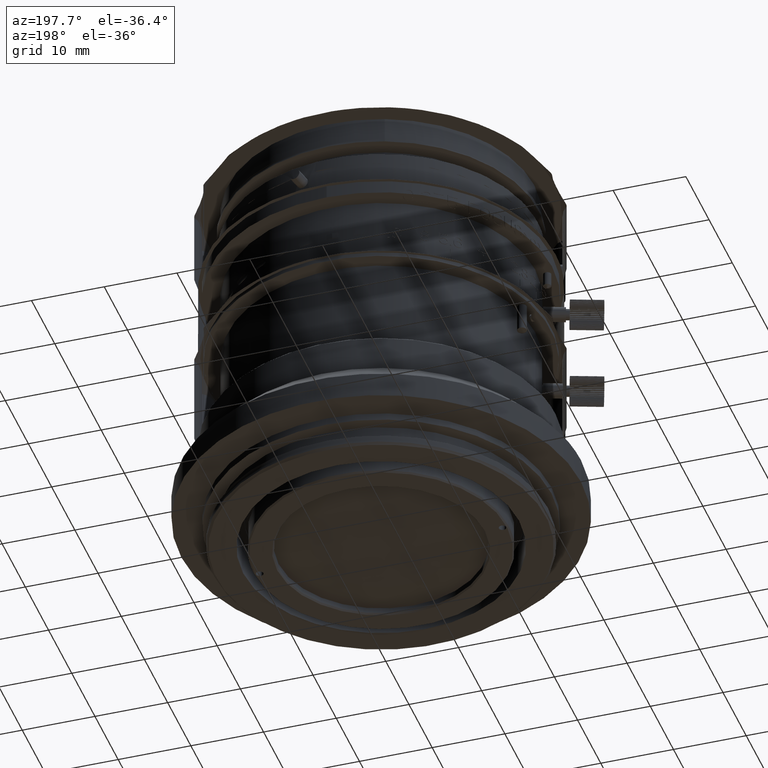
[diagram: clean part render]
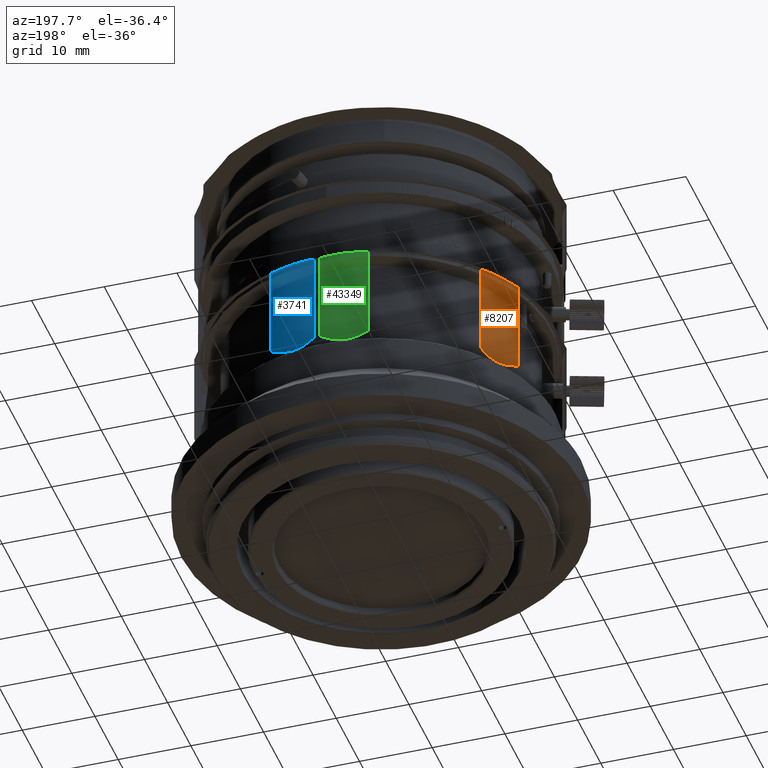
[diagram: same view with three faces highlighted in distinct colors, each labeled with its STEP entity id]
A machine part, auxiliary view with three faces highlighted in distinct colors.
Their STEP definitions:

[orange] entity #8207 — the highlighted cylindrical surface (partial cylindrical patch) has radius 12 mm, axis along (0, 0, 1).
#195 = CARTESIAN_POINT ( 'NONE',  ( 5.319766535629848470, 166.5259622830697026, -20.67644579649326886 ) ) ;
#2896 = B_SPLINE_CURVE_WITH_KNOTS ( 'NONE', 3,
 ( #23122, #195, #87025, #73132 ),
 .UNSPECIFIED., .F., .F.,
 ( 4, 4 ),
 ( 0.000000000000000000, 1.000000000000000000 ),
 .UNSPECIFIED. ) ;
#3715 = ORIENTED_EDGE ( 'NONE', *, *, #8224, .T. ) ;
#4960 = CARTESIAN_POINT ( 'NONE',  ( 4.713777907721041771, 164.9250731456057792, -25.43944628784991480 ) ) ;
#6557 = CARTESIAN_POINT ( 'NONE',  ( 4.530281848967027791, 164.5433580597165815, -25.51447044980143986 ) ) ;
#6718 = CARTESIAN_POINT ( 'NONE',  ( 5.319766535618810188, 166.5259622830820092, -24.92933738950929978 ) ) ;
#8207 = ADVANCED_FACE ( 'NONE', ( #87502 ), #61919, .T. ) ;
#8224 = EDGE_CURVE ( 'NONE', #87186, #51864, #100358, .T. ) ;
#8930 = CARTESIAN_POINT ( 'NONE',  ( 5.319766535621269554, 166.5259622830905073, -12.17066261045304110 ) ) ;
#9037 = ORIENTED_EDGE ( 'NONE', *, *, #9531, .T. ) ;
#9398 = VERTEX_POINT ( 'NONE', #52894 ) ;
#9531 = EDGE_CURVE ( 'NONE', #98876, #9398, #9939, .T. ) ;
#9939 = B_SPLINE_CURVE_WITH_KNOTS ( 'NONE', 3,
 ( #26086, #36132, #68618, #51061, #92628, #19672, #67584, #52109, #83580, #44130, #75582, #28161, #76101, #83068, #59070, #50552, #43104, #76617, #85153, #34055 ),
 .UNSPECIFIED., .F., .F.,
 ( 4, 2, 1, 2, 2, 2, 2, 1, 2, 2, 4 ),
 ( 0.000000000000000000, 0.1250000000000011935, 0.1875000000000016653, 0.2187500000000018319, 0.2500000000000019984, 0.4999999999999604205, 0.6249999999999398259, 0.6874999999999343858, 0.7187499999999363842, 0.7499999999999382716, 1.000000000000000000 ),
 .UNSPECIFIED. ) ;
#12969 = DIRECTION ( 'NONE',  ( 0.6665899134696403605, -0.7454246355336919816, 0.000000000000000000 ) ) ;
#14549 = CARTESIAN_POINT ( 'NONE',  ( 3.335186598700318861, 162.6269272480213317, -25.54176217671032134 ) ) ;
#19672 = CARTESIAN_POINT ( 'NONE',  ( 4.853559638344345117, 165.2388867379362409, -11.73537881811166983 ) ) ;
#20979 = CARTESIAN_POINT ( 'NONE',  ( 4.097091214201260101, 163.7583022263436874, -25.60000170646373263 ) ) ;
#23062 = CARTESIAN_POINT ( 'NONE',  ( 5.163199564024538724, 166.0024356188966976, -25.14678083029066613 ) ) ;
#23122 = CARTESIAN_POINT ( 'NONE',  ( 5.319766535618810188, 166.5259622830820092, -24.92933738950929978 ) ) ;
#23891 = CARTESIAN_POINT ( 'NONE',  ( 1.821966482593015080, 161.0191471749330105, -12.17066261043533970 ) ) ;
#26086 = CARTESIAN_POINT ( 'NONE',  ( 5.319766535621269554, 166.5259622830905073, -12.17066261045304110 ) ) ;
#28161 = CARTESIAN_POINT ( 'NONE',  ( 3.653204157984951905, 163.0764763165507247, -11.51455604287960988 ) ) ;
#28917 = CARTESIAN_POINT ( 'NONE',  ( 3.662621367677795448, 163.0742879663578719, -25.59999658726514937 ) ) ;
#29445 = CARTESIAN_POINT ( 'NONE',  ( 2.879527871400421102, 162.0913791006478561, -25.39618032623058852 ) ) ;
#31334 = CARTESIAN_POINT ( 'NONE',  ( 1.821966482598784909, 161.0191471749380128, -24.92933738952934775 ) ) ;
#34055 = CARTESIAN_POINT ( 'NONE',  ( 1.821966482593015080, 161.0191471749330105, -12.17066261043533970 ) ) ;
#34634 = EDGE_CURVE ( 'NONE', #9398, #87186, #73626, .T. ) ;
#36132 = CARTESIAN_POINT ( 'NONE',  ( 5.241487619500457384, 166.2642142309978794, -12.06194723649099032 ) ) ;
#37424 = CARTESIAN_POINT ( 'NONE',  ( 2.651474183054599809, 161.8347263493627679, -25.31483976431330518 ) ) ;
#37959 = CARTESIAN_POINT ( 'NONE',  ( 2.025618391355233250, 161.2012612368759790, -25.03805276346950137 ) ) ;
#39557 = CARTESIAN_POINT ( 'NONE',  ( 2.788816132477143661, 161.9882261626868569, -25.36462118186055648 ) ) ;
#43104 = CARTESIAN_POINT ( 'NONE',  ( 3.013453535947868467, 162.2481414178936348, -11.66055371212448577 ) ) ;
#44130 = CARTESIAN_POINT ( 'NONE',  ( 4.241914496454346484, 163.9863069797959270, -11.50000341268832571 ) ) ;
#45428 = CARTESIAN_POINT ( 'NONE',  ( 2.223374624072166572, 161.3906243263953684, -25.13374039877257005 ) ) ;
#46253 = CARTESIAN_POINT ( 'NONE',  ( 1.821966482606378834, 161.0191471749578795, -16.42355420349660022 ) ) ;
#47004 = DIRECTION ( 'NONE',  ( 0.000000000000000000, 0.000000000000000000, 1.000000000000000000 ) ) ;
#47324 = CARTESIAN_POINT ( 'NONE',  ( 1.821966482606378834, 161.0191471749578795, -20.67644579649310188 ) ) ;
#50552 = CARTESIAN_POINT ( 'NONE',  ( 3.059919320808337950, 162.3038127316023065, -11.64649513808250525 ) ) ;
#51061 = CARTESIAN_POINT ( 'NONE',  ( 5.009699153643336622, 165.6198182334648266, -11.84226975617745126 ) ) ;
#51864 = VERTEX_POINT ( 'NONE', #6718 ) ;
#52109 = CARTESIAN_POINT ( 'NONE',  ( 4.771609383175813512, 165.0519632791772437, -11.68926140625905852 ) ) ;
#52894 = CARTESIAN_POINT ( 'NONE',  ( 1.821966482593015080, 161.0191471749330105, -12.17066261043533970 ) ) ;
#53950 = CARTESIAN_POINT ( 'NONE',  ( -6.177112479063109340, 169.9642428013999904, -18.55000000800099969 ) ) ;
#59070 = CARTESIAN_POINT ( 'NONE',  ( 3.149065888774244648, 162.4125977900543774, -11.62101694374810634 ) ) ;
#61389 = CARTESIAN_POINT ( 'NONE',  ( 2.510378998562925013, 161.6849752517728973, -25.25773024378935716 ) ) ;
#61919 = CYLINDRICAL_SURFACE ( 'NONE', #89465, 12.00000000005071321 ) ;
#63495 = CARTESIAN_POINT ( 'NONE',  ( 1.821966482598784909, 161.0191471749380128, -24.92933738952934775 ) ) ;
#67584 = CARTESIAN_POINT ( 'NONE',  ( 4.798747175984277469, 165.1129314198282430, -11.70381967374371968 ) ) ;
#68618 = CARTESIAN_POINT ( 'NONE',  ( 5.154141119008435190, 166.0047214640312916, -11.96625960118994136 ) ) ;
#70044 = EDGE_CURVE ( 'NONE', #51864, #98876, #2896, .T. ) ;
#70445 = CARTESIAN_POINT ( 'NONE',  ( 4.433883028829233908, 164.3583630831033133, -25.54176814951054553 ) ) ;
#70554 = ORIENTED_EDGE ( 'NONE', *, *, #34634, .T. ) ;
#70962 = CARTESIAN_POINT ( 'NONE',  ( 4.683136947479034973, 164.8593502736976859, -25.45350486189797579 ) ) ;
#73132 = CARTESIAN_POINT ( 'NONE',  ( 5.319766535621269554, 166.5259622830905073, -12.17066261045304110 ) ) ;
#73626 = B_SPLINE_CURVE_WITH_KNOTS ( 'NONE', 3,
 ( #23891, #46253, #47324, #31334 ),
 .UNSPECIFIED., .F., .F.,
 ( 4, 4 ),
 ( 0.000000000000000000, 1.000000000000000000 ),
 .UNSPECIFIED. ) ;
#75582 = CARTESIAN_POINT ( 'NONE',  ( 3.807444649811793091, 163.3022927196228693, -11.49999829353463809 ) ) ;
#76101 = CARTESIAN_POINT ( 'NONE',  ( 3.407447423668676034, 162.7423784607003654, -11.55823185049134771 ) ) ;
#76617 = CARTESIAN_POINT ( 'NONE',  ( 2.612989492458783758, 161.7766632805478650, -11.78789937629983875 ) ) ;
#83068 = CARTESIAN_POINT ( 'NONE',  ( 3.280971765570112719, 162.5764875875370592, -11.58552955019579933 ) ) ;
#83580 = CARTESIAN_POINT ( 'NONE',  ( 4.507670211500195201, 164.4728447890246628, -11.55823782324085869 ) ) ;
#84565 = EDGE_LOOP ( 'NONE', ( #93218, #9037, #70554, #3715 ) ) ;
#85153 = CARTESIAN_POINT ( 'NONE',  ( 2.229294077209877933, 161.3833965612773795, -11.95321916964808118 ) ) ;
#86964 = CARTESIAN_POINT ( 'NONE',  ( 5.319766535618810188, 166.5259622830820092, -24.92933738950929978 ) ) ;
#87025 = CARTESIAN_POINT ( 'NONE',  ( 5.319766535629605997, 166.5259622830688784, -16.42355420349693418 ) ) ;
#87186 = VERTEX_POINT ( 'NONE', #101062 ) ;
#87502 = FACE_OUTER_BOUND ( 'NONE', #84565, .T. ) ;
#88033 = CARTESIAN_POINT ( 'NONE',  ( 4.235930795573966456, 163.9939009271877239, -25.58544395712524988 ) ) ;
#89465 = AXIS2_PLACEMENT_3D ( 'NONE', #53950, #47004, #12969 ) ;
#92628 = CARTESIAN_POINT ( 'NONE',  ( 4.934123674893098332, 165.4284505524667566, -11.78516023565597770 ) ) ;
#93218 = ORIENTED_EDGE ( 'NONE', *, *, #70044, .T. ) ;
#95482 = CARTESIAN_POINT ( 'NONE',  ( 4.970322015126522608, 165.4879658575700319, -25.31210062364903024 ) ) ;
#98876 = VERTEX_POINT ( 'NONE', #8930 ) ;
#100358 = B_SPLINE_CURVE_WITH_KNOTS ( 'NONE', 3,
 ( #63495, #37959, #45428, #61389, #37424, #39557, #29445, #101881, #14549, #28917, #20979, #88033, #70445, #6557, #102937, #70962, #4960, #95482, #23062, #86964 ),
 .UNSPECIFIED., .F., .F.,
 ( 4, 2, 1, 2, 2, 2, 2, 1, 2, 2, 4 ),
 ( 0.000000000000000000, 0.1249999999999854561, 0.1874999999999823475, 0.2187499999999850397, 0.2499999999999877320, 0.5000000000000088818, 0.6250000000000140998, 0.6875000000000112133, 0.7187500000000045519, 0.7499999999999977796, 1.000000000000000000 ),
 .UNSPECIFIED. ) ;
#101062 = CARTESIAN_POINT ( 'NONE',  ( 1.821966482598784909, 161.0191471749380128, -24.92933738952934775 ) ) ;
#101881 = CARTESIAN_POINT ( 'NONE',  ( 2.923178897673717636, 162.1418584219665888, -25.41073859372063737 ) ) ;
#102937 = CARTESIAN_POINT ( 'NONE',  ( 4.622561194616088720, 164.7324177022457548, -25.47898305623970927 ) ) ;

[blue] entity #3741 — the highlighted cylindrical surface (partial cylindrical patch) has radius 12 mm, axis along (0, 0, 1).
#1476 = CARTESIAN_POINT ( 'NONE',  ( 31.27181774919208479, 173.8957690886931857, -11.96625960131774846 ) ) ;
#1493 = DIRECTION ( 'NONE',  ( 0.000000000000000000, 0.000000000000000000, 1.000000000000000000 ) ) ;
#2734 = CARTESIAN_POINT ( 'NONE',  ( 30.72362686120896313, 173.8780894443562772, -25.31210062342100287 ) ) ;
#3741 = ADVANCED_FACE ( 'NONE', ( #41964 ), #74425, .T. ) ;
#7733 = CARTESIAN_POINT ( 'NONE',  ( 29.06453779835375784, 174.0158717396947168, -25.58544395703070151 ) ) ;
#9463 = CARTESIAN_POINT ( 'NONE',  ( 31.81753690356394770, 173.9320233909979834, -12.17066261046968023 ) ) ;
#12317 = EDGE_CURVE ( 'NONE', #81514, #89843, #33270, .T. ) ;
#14793 = CARTESIAN_POINT ( 'NONE',  ( 25.41349742638890064, 175.1761681658010161, -24.92933738948404709 ) ) ;
#15239 = CARTESIAN_POINT ( 'NONE',  ( 25.41349742638890064, 175.1761681658010161, -24.92933738948404709 ) ) ;
#15704 = CARTESIAN_POINT ( 'NONE',  ( 27.99904077950294834, 174.2135780950248432, -25.59999658723999261 ) ) ;
#17991 = CARTESIAN_POINT ( 'NONE',  ( 30.31183382042763341, 173.9007884924053542, -11.70381967382678745 ) ) ;
#18213 = CARTESIAN_POINT ( 'NONE',  ( 29.89325562301909756, 173.9257781259569811, -25.47898305616142167 ) ) ;
#19241 = CARTESIAN_POINT ( 'NONE',  ( 30.10591872486884668, 173.9112518193389576, -25.43944628781108008 ) ) ;
#19406 = EDGE_CURVE ( 'NONE', #88379, #81514, #51040, .T. ) ;
#19544 = CARTESIAN_POINT ( 'NONE',  ( 27.39621921852520714, 174.3869787904485804, -11.58552955027292164 ) ) ;
#20606 = CARTESIAN_POINT ( 'NONE',  ( 26.99283500502572153, 174.5160461616201815, -11.66055371216874370 ) ) ;
#23172 = CARTESIAN_POINT ( 'NONE',  ( 31.81753690356394770, 173.9320233909979834, -12.17066261046968023 ) ) ;
#25946 = CARTESIAN_POINT ( 'NONE',  ( 31.81753690354889486, 173.9320233909969886, -24.92933738949454892 ) ) ;
#27001 = CARTESIAN_POINT ( 'NONE',  ( 29.60965162267363127, 173.9378944920935339, -11.55823782328442384 ) ) ;
#27735 = CARTESIAN_POINT ( 'NONE',  ( 30.03354462911876510, 173.9157634235024830, -25.45350486182793404 ) ) ;
#28039 = CARTESIAN_POINT ( 'NONE',  ( 27.59684942393494111, 174.3298526620223470, -11.55823185057065317 ) ) ;
#30081 = CARTESIAN_POINT ( 'NONE',  ( 31.81753690354889486, 173.9320233909969886, -24.92933738949454892 ) ) ;
#31667 = CARTESIAN_POINT ( 'NONE',  ( 26.28480463803632716, 174.7785973380625535, -25.25773024374643327 ) ) ;
#32783 = CARTESIAN_POINT ( 'NONE',  ( 25.41349742641475729, 175.1761681657851852, -20.67644579649339676 ) ) ;
#33063 = CARTESIAN_POINT ( 'NONE',  ( 31.81753690356394770, 173.9320233909979834, -12.17066261046968023 ) ) ;
#33270 = B_SPLINE_CURVE_WITH_KNOTS ( 'NONE', 3,
 ( #30081, #95068, #86037, #23172 ),
 .UNSPECIFIED., .F., .F.,
 ( 4, 4 ),
 ( 0.000000000000000000, 1.000000000000000000 ),
 .UNSPECIFIED. ) ;
#33936 = CARTESIAN_POINT ( 'NONE',  ( 30.86075086050710681, 173.8896053819118777, -11.84226975630824974 ) ) ;
#36668 = VERTEX_POINT ( 'NONE', #54601 ) ;
#38257 = AXIS2_PLACEMENT_3D ( 'NONE', #91488, #1493, #49402 ) ;
#40210 = CARTESIAN_POINT ( 'NONE',  ( 29.47612612333933768, 173.9647561796724631, -25.54176814941730100 ) ) ;
#41768 = ORIENTED_EDGE ( 'NONE', *, *, #12317, .T. ) ;
#41925 = EDGE_CURVE ( 'NONE', #89843, #36668, #70642, .T. ) ;
#41949 = CARTESIAN_POINT ( 'NONE',  ( 31.54528401382260938, 173.9092638776508579, -12.06194723659173285 ) ) ;
#41964 = FACE_OUTER_BOUND ( 'NONE', #95847, .T. ) ;
#42457 = CARTESIAN_POINT ( 'NONE',  ( 30.24516562969302313, 173.9037761883714097, -11.68926140632174615 ) ) ;
#44009 = CARTESIAN_POINT ( 'NONE',  ( 29.05965488348743264, 174.0075272890854876, -11.50000341273338300 ) ) ;
#45585 = CARTESIAN_POINT ( 'NONE',  ( 26.40764243963596414, 174.7165773214548494, -11.78789937651291453 ) ) ;
#47639 = CARTESIAN_POINT ( 'NONE',  ( 25.41349742638890064, 175.1761681658010161, -24.92933738948404709 ) ) ;
#48179 = CARTESIAN_POINT ( 'NONE',  ( 28.79450135749275930, 174.0590399905700565, -25.60000170637872330 ) ) ;
#49402 = DIRECTION ( 'NONE',  ( -0.4503635829923428591, -0.8928452514933925555, 0.000000000000000000 ) ) ;
#50387 = ORIENTED_EDGE ( 'NONE', *, *, #41925, .T. ) ;
#51040 = B_SPLINE_CURVE_WITH_KNOTS ( 'NONE', 3,
 ( #47639, #72127, #104633, #31667, #64138, #96653, #56689, #80678, #56159, #15704, #48179, #7733, #40210, #83163, #18213, #27735, #19241, #2734, #51158, #52731 ),
 .UNSPECIFIED., .F., .F.,
 ( 4, 2, 1, 2, 2, 2, 2, 1, 2, 2, 4 ),
 ( 0.000000000000000000, 0.1249999999999949762, 0.1874999999999931166, 0.2187499999999920064, 0.2499999999999908962, 0.4999999999999892308, 0.6249999999999880096, 0.6874999999999888978, 0.7187499999999896749, 0.7499999999999903411, 1.000000000000000000 ),
 .UNSPECIFIED. ) ;
#51158 = CARTESIAN_POINT ( 'NONE',  ( 31.27299933778180474, 173.8865017070501438, -25.14678083006723242 ) ) ;
#51994 = CARTESIAN_POINT ( 'NONE',  ( 25.41349742638189824, 175.1761681658045120, -12.17066261048100095 ) ) ;
#52731 = CARTESIAN_POINT ( 'NONE',  ( 31.81753690354889486, 173.9320233909969886, -24.92933738949454892 ) ) ;
#53039 = CARTESIAN_POINT ( 'NONE',  ( 27.99763736447759754, 174.2231438223790292, -11.51455604295939850 ) ) ;
#54601 = CARTESIAN_POINT ( 'NONE',  ( 25.41349742638189824, 175.1761681658045120, -12.17066261048100095 ) ) ;
#55634 = EDGE_CURVE ( 'NONE', #36668, #88379, #83390, .T. ) ;
#56159 = CARTESIAN_POINT ( 'NONE',  ( 27.46297907756178702, 174.3549393025609220, -25.54176217668587512 ) ) ;
#56689 = CARTESIAN_POINT ( 'NONE',  ( 26.79798053961856041, 174.5834423414634387, -25.39618032617364207 ) ) ;
#58423 = CARTESIAN_POINT ( 'NONE',  ( 30.44910756074798641, 173.8957816550366999, -11.73537881821254203 ) ) ;
#64138 = CARTESIAN_POINT ( 'NONE',  ( 26.47575186284338500, 174.7019657541555944, -25.31483976426747873 ) ) ;
#70073 = CARTESIAN_POINT ( 'NONE',  ( 28.26419430549996292, 174.1620653935398764, -11.49999829360960923 ) ) ;
#70642 = B_SPLINE_CURVE_WITH_KNOTS ( 'NONE', 3,
 ( #9463, #41949, #1476, #33936, #98922, #58423, #17991, #42457, #27001, #44009, #70073, #53039, #28039, #19544, #93029, #91983, #20606, #45585, #77567, #51994 ),
 .UNSPECIFIED., .F., .F.,
 ( 4, 2, 1, 2, 2, 2, 2, 1, 2, 2, 4 ),
 ( 0.000000000000000000, 0.1249999999999952538, 0.1874999999999942268, 0.2187499999999944766, 0.2499999999999947264, 0.4999999999999953371, 0.6249999999999968914, 0.6874999999999976685, 0.7187499999999980016, 0.7499999999999983347, 1.000000000000000000 ),
 .UNSPECIFIED. ) ;
#71338 = ORIENTED_EDGE ( 'NONE', *, *, #19406, .T. ) ;
#72127 = CARTESIAN_POINT ( 'NONE',  ( 25.65742502289522875, 175.0531276879891891, -25.03805276342286135 ) ) ;
#73233 = CARTESIAN_POINT ( 'NONE',  ( 25.41349742638189824, 175.1761681658045120, -12.17066261048100095 ) ) ;
#74425 = CYLINDRICAL_SURFACE ( 'NONE', #38257, 11.99999999999340083 ) ;
#77250 = ORIENTED_EDGE ( 'NONE', *, *, #55634, .T. ) ;
#77567 = CARTESIAN_POINT ( 'NONE',  ( 25.90138109842176917, 174.9300728449655651, -11.95321916985937527 ) ) ;
#80678 = CARTESIAN_POINT ( 'NONE',  ( 26.86091792529351352, 174.5612509139790802, -25.41073859365284804 ) ) ;
#81514 = VERTEX_POINT ( 'NONE', #25946 ) ;
#83163 = CARTESIAN_POINT ( 'NONE',  ( 29.68355153433793703, 173.9426073028793667, -25.51447044971275346 ) ) ;
#83390 = B_SPLINE_CURVE_WITH_KNOTS ( 'NONE', 3,
 ( #73233, #88730, #32783, #15239 ),
 .UNSPECIFIED., .F., .F.,
 ( 4, 4 ),
 ( 0.000000000000000000, 1.000000000000000000 ),
 .UNSPECIFIED. ) ;
#86037 = CARTESIAN_POINT ( 'NONE',  ( 31.81753690354851472, 173.9320233910133027, -16.42355420349743156 ) ) ;
#88379 = VERTEX_POINT ( 'NONE', #14793 ) ;
#88730 = CARTESIAN_POINT ( 'NONE',  ( 25.41349742641475729, 175.1761681657851852, -16.42355420349749551 ) ) ;
#89843 = VERTEX_POINT ( 'NONE', #33063 ) ;
#91488 = CARTESIAN_POINT ( 'NONE',  ( 30.81786042231989953, 185.8903111836999926, -18.54998205222450025 ) ) ;
#91983 = CARTESIAN_POINT ( 'NONE',  ( 27.06163382680071550, 174.4931313971111422, -11.64649513815051840 ) ) ;
#93029 = CARTESIAN_POINT ( 'NONE',  ( 27.19546788033471785, 174.4498908419256225, -11.62101694382015005 ) ) ;
#95068 = CARTESIAN_POINT ( 'NONE',  ( 31.81753690354699415, 173.9320233910131890, -20.67644579649346781 ) ) ;
#95847 = EDGE_LOOP ( 'NONE', ( #71338, #41768, #50387, #77250 ) ) ;
#96653 = CARTESIAN_POINT ( 'NONE',  ( 26.66881745796560210, 174.6301975178958230, -25.36462118180849856 ) ) ;
#98922 = CARTESIAN_POINT ( 'NONE',  ( 30.65500088708279236, 173.8900421465121724, -11.78516023577887140 ) ) ;
#104633 = CARTESIAN_POINT ( 'NONE',  ( 25.90594661653988240, 174.9382237074197803, -25.13374039873097843 ) ) ;

[green] entity #43349 — the highlighted cylindrical surface (partial cylindrical patch) has radius 12 mm, axis along (-0, -0, 1).
#56 = VERTEX_POINT ( 'NONE', #35003 ) ;
#3004 = ORIENTED_EDGE ( 'NONE', *, *, #34888, .T. ) ;
#3285 = ORIENTED_EDGE ( 'NONE', *, *, #3984, .T. ) ;
#3984 = EDGE_CURVE ( 'NONE', #62779, #101654, #86311, .T. ) ;
#7877 = CARTESIAN_POINT ( 'NONE',  ( 23.00304279310465461, 174.6778826381511180, -25.44556623765914338 ) ) ;
#8017 = EDGE_CURVE ( 'NONE', #38246, #8626, #44501, .T. ) ;
#8626 = VERTEX_POINT ( 'NONE', #50024 ) ;
#9616 = CARTESIAN_POINT ( 'NONE',  ( 24.65089492020409878, 175.2084341155160132, -24.92933738948930156 ) ) ;
#10527 = CARTESIAN_POINT ( 'NONE',  ( 18.70339707721164402, 174.4183254963580509, -11.95321916983027144 ) ) ;
#11062 = CARTESIAN_POINT ( 'NONE',  ( 21.99328269533576119, 174.4676835913888340, -11.50000341277302951 ) ) ;
#11578 = CARTESIAN_POINT ( 'NONE',  ( 20.29190351675618587, 174.3399708576934870, -11.58552955024748243 ) ) ;
#11976 = DIRECTION ( 'NONE',  ( -3.211315378312975131E-15, -1.895276074029874853E-15, 1.000000000000000000 ) ) ;
#15756 = CARTESIAN_POINT ( 'NONE',  ( 18.16465083855796792, 174.5096812557471537, -20.67644579649520864 ) ) ;
#16610 = AXIS2_PLACEMENT_3D ( 'NONE', #100374, #11976, #44420 ) ;
#19819 = ORIENTED_EDGE ( 'NONE', *, *, #26338, .T. ) ;
#20633 = CARTESIAN_POINT ( 'NONE',  ( 23.55238130602948132, 174.8256544735846205, -11.78516023571459392 ) ) ;
#23833 = CARTESIAN_POINT ( 'NONE',  ( 19.84070368440454857, 174.3448664825551759, -25.43429410246321609 ) ) ;
#24362 = CARTESIAN_POINT ( 'NONE',  ( 19.62955215453720470, 174.3525387382014173, -25.38921531781120677 ) ) ;
#26338 = EDGE_CURVE ( 'NONE', #8626, #62779, #28383, .T. ) ;
#27025 = CARTESIAN_POINT ( 'NONE',  ( 19.86839725634444420, 174.3444045434940222, -11.66055371217461278 ) ) ;
#28062 = CARTESIAN_POINT ( 'NONE',  ( 23.74911912403018377, 174.8858829825016699, -11.84226975623463929 ) ) ;
#28383 = B_SPLINE_CURVE_WITH_KNOTS ( 'NONE', 3,
 ( #31188, #49279, #73772, #59228 ),
 .UNSPECIFIED., .F., .F.,
 ( 4, 4 ),
 ( 0.7686662076705880198, 1.000000000000000000 ),
 .UNSPECIFIED. ) ;
#31188 = CARTESIAN_POINT ( 'NONE',  ( 23.20717522128517274, 174.7324737109511830, -25.39938507259067890 ) ) ;
#31275 = CARTESIAN_POINT ( 'NONE',  ( 18.16465083856255092, 174.5096812557590056, -24.92933738947510136 ) ) ;
#34888 = EDGE_CURVE ( 'NONE', #101654, #56, #86288, .T. ) ;
#35003 = CARTESIAN_POINT ( 'NONE',  ( 18.16465083855435125, 174.5096812557604835, -12.17066261049136067 ) ) ;
#35394 = FACE_OUTER_BOUND ( 'NONE', #102524, .T. ) ;
#36038 = CARTESIAN_POINT ( 'NONE',  ( 23.22129264832924989, 174.7347731209271444, -11.70381967380230215 ) ) ;
#36586 = CARTESIAN_POINT ( 'NONE',  ( 19.25009555778180115, 174.3635381298679476, -11.78789937648199704 ) ) ;
#38246 = VERTEX_POINT ( 'NONE', #62735 ) ;
#39746 = CARTESIAN_POINT ( 'NONE',  ( 24.65089492020409878, 175.2084341155160132, -24.92933738948930156 ) ) ;
#39822 = CARTESIAN_POINT ( 'NONE',  ( 18.57874269356313945, 174.4394632696960912, -25.09646905785838911 ) ) ;
#40878 = CARTESIAN_POINT ( 'NONE',  ( 22.36919306147814268, 174.5419195049744019, -25.54764768162086241 ) ) ;
#43004 = CARTESIAN_POINT ( 'NONE',  ( 23.15670569946274071, 174.7179772877711628, -11.68926140631398169 ) ) ;
#43349 = ADVANCED_FACE ( 'NONE', ( #35394 ), #67871, .T. ) ;
#44420 = DIRECTION ( 'NONE',  ( -0.1671844348027370086, -0.9859256385547996437, -2.312964634636669178E-15 ) ) ;
#44501 = B_SPLINE_CURVE_WITH_KNOTS ( 'NONE', 3,
 ( #31275, #39822, #63753, #64807, #24362, #23833, #96278, #80823, #56830, #71741, #88293, #81343, #40878, #47783, #7877, #87219 ),
 .UNSPECIFIED., .F., .F.,
 ( 4, 2, 2, 2, 2, 2, 2, 4 ),
 ( 0.000000000000000000, 0.1921665519176476156, 0.2402081898970593044, 0.2882498278764710764, 0.3843331038352941764, 0.5764996557529411536, 0.6725829317117645312, 0.7686662076705880198 ),
 .UNSPECIFIED. ) ;
#45095 = CARTESIAN_POINT ( 'NONE',  ( 22.53936925006770409, 174.5632587690018909, -11.55823782332329763 ) ) ;
#47783 = CARTESIAN_POINT ( 'NONE',  ( 22.78927974343214657, 174.6279810082801589, -25.48584428893990861 ) ) ;
#49279 = CARTESIAN_POINT ( 'NONE',  ( 23.69942148316686925, 174.8600255200979632, -25.28712289379141964 ) ) ;
#50024 = CARTESIAN_POINT ( 'NONE',  ( 23.20717522128517274, 174.7324737109511830, -25.39938507259067890 ) ) ;
#53065 = CARTESIAN_POINT ( 'NONE',  ( 23.35394349270751846, 174.7704508685523592, -11.73537881817043349 ) ) ;
#53607 = CARTESIAN_POINT ( 'NONE',  ( 24.65089492021269990, 175.2084341155195091, -12.17066261047463982 ) ) ;
#56830 = CARTESIAN_POINT ( 'NONE',  ( 20.48841876928191752, 174.3431151549530398, -25.54188984956849140 ) ) ;
#59228 = CARTESIAN_POINT ( 'NONE',  ( 24.65089492020409878, 175.2084341155160132, -24.92933738948930156 ) ) ;
#59480 = CARTESIAN_POINT ( 'NONE',  ( 19.94089378499089094, 174.3427866263878911, -11.64649513814262249 ) ) ;
#60808 = CARTESIAN_POINT ( 'NONE',  ( 24.65089492021269990, 175.2084341155195091, -12.17066261047463982 ) ) ;
#62735 = CARTESIAN_POINT ( 'NONE',  ( 18.16465083856255092, 174.5096812557590056, -24.92933738947510136 ) ) ;
#62779 = VERTEX_POINT ( 'NONE', #9616 ) ;
#63144 = CARTESIAN_POINT ( 'NONE',  ( 24.65089492020426576, 175.2084341155128868, -16.42355420349896633 ) ) ;
#63753 = CARTESIAN_POINT ( 'NONE',  ( 18.99754615498174459, 174.3908322311424968, -25.23281108660888350 ) ) ;
#64807 = CARTESIAN_POINT ( 'NONE',  ( 19.52409149723689197, 174.3577668041891400, -25.36475157300827021 ) ) ;
#67871 = CYLINDRICAL_SURFACE ( 'NONE', #16610, 11.99999999999519318 ) ;
#68525 = CARTESIAN_POINT ( 'NONE',  ( 20.91489354655210064, 174.3606857280858264, -11.51455604292939761 ) ) ;
#69578 = CARTESIAN_POINT ( 'NONE',  ( 21.18761129345597638, 174.3808898801105443, -11.49999829358941739 ) ) ;
#71357 = B_SPLINE_CURVE_WITH_KNOTS ( 'NONE', 3,
 ( #104688, #88718, #15756, #72718 ),
 .UNSPECIFIED., .F., .F.,
 ( 4, 4 ),
 ( 0.000000000000000000, 1.000000000000000000 ),
 .UNSPECIFIED. ) ;
#71741 = CARTESIAN_POINT ( 'NONE',  ( 21.12431316114900071, 174.3712023873522412, -25.60402106529355848 ) ) ;
#72718 = CARTESIAN_POINT ( 'NONE',  ( 18.16465083856255092, 174.5096812557590056, -24.92933738947510136 ) ) ;
#73772 = CARTESIAN_POINT ( 'NONE',  ( 24.18181704138937249, 175.0196615321800664, -25.13054545236030535 ) ) ;
#75486 = CARTESIAN_POINT ( 'NONE',  ( 18.16465083855435125, 174.5096812557604835, -12.17066261049136067 ) ) ;
#80823 = CARTESIAN_POINT ( 'NONE',  ( 20.27432670902775413, 174.3392923356733206, -25.51257803110760136 ) ) ;
#81343 = CARTESIAN_POINT ( 'NONE',  ( 22.15984803803073433, 174.5048982442590955, -25.56994695646051952 ) ) ;
#81709 = ORIENTED_EDGE ( 'NONE', *, *, #92990, .T. ) ;
#83370 = ORIENTED_EDGE ( 'NONE', *, *, #8017, .T. ) ;
#84007 = CARTESIAN_POINT ( 'NONE',  ( 20.08152734447876853, 174.3409154075372953, -11.62101694380447370 ) ) ;
#86288 = B_SPLINE_CURVE_WITH_KNOTS ( 'NONE', 3,
 ( #53607, #102067, #93576, #28062, #20633, #53065, #36038, #43004, #45095, #11062, #69578, #68525, #101026, #11578, #84007, #59480, #27025, #36586, #10527, #75486 ),
 .UNSPECIFIED., .F., .F.,
 ( 4, 2, 1, 2, 2, 2, 2, 1, 2, 2, 4 ),
 ( 0.000000000000000000, 0.1250000000000008604, 0.1874999999999995837, 0.2187499999999989730, 0.2499999999999983624, 0.4999999999999982792, 0.6249999999999981126, 0.6874999999999991118, 0.7187499999999988898, 0.7499999999999985567, 1.000000000000000000 ),
 .UNSPECIFIED. ) ;
#86311 = B_SPLINE_CURVE_WITH_KNOTS ( 'NONE', 3,
 ( #39746, #96210, #63144, #95139 ),
 .UNSPECIFIED., .F., .F.,
 ( 4, 4 ),
 ( 0.000000000000000000, 1.000000000000000000 ),
 .UNSPECIFIED. ) ;
#87219 = CARTESIAN_POINT ( 'NONE',  ( 23.20717522128517274, 174.7324737109511830, -25.39938507259067890 ) ) ;
#88293 = CARTESIAN_POINT ( 'NONE',  ( 21.53495143510311749, 174.4111314654814180, -25.61103751647699411 ) ) ;
#88718 = CARTESIAN_POINT ( 'NONE',  ( 18.16465083855795370, 174.5096812557471537, -16.42355420349880646 ) ) ;
#92990 = EDGE_CURVE ( 'NONE', #56, #38246, #71357, .T. ) ;
#93576 = CARTESIAN_POINT ( 'NONE',  ( 24.14010667974910973, 175.0129369455468122, -11.96625960124258548 ) ) ;
#95139 = CARTESIAN_POINT ( 'NONE',  ( 24.65089492021269990, 175.2084341155195091, -12.17066261047463982 ) ) ;
#96210 = CARTESIAN_POINT ( 'NONE',  ( 24.65089492020510775, 175.2084341155131710, -20.67644579649514114 ) ) ;
#96278 = CARTESIAN_POINT ( 'NONE',  ( 19.95044947114070055, 174.3423276171728560, -25.45570818358744347 ) ) ;
#100374 = CARTESIAN_POINT ( 'NONE',  ( 20.17086405619000189, 186.3407889183999941, -18.55000000800650284 ) ) ;
#101026 = CARTESIAN_POINT ( 'NONE',  ( 20.50045850704158568, 174.3445194740619684, -11.55823185054115854 ) ) ;
#101654 = VERTEX_POINT ( 'NONE', #60808 ) ;
#102067 = CARTESIAN_POINT ( 'NONE',  ( 24.39744594671210365, 175.1064377954344025, -12.06194723653834266 ) ) ;
#102524 = EDGE_LOOP ( 'NONE', ( #3285, #3004, #81709, #83370, #19819 ) ) ;
#104688 = CARTESIAN_POINT ( 'NONE',  ( 18.16465083855435125, 174.5096812557604835, -12.17066261049136067 ) ) ;